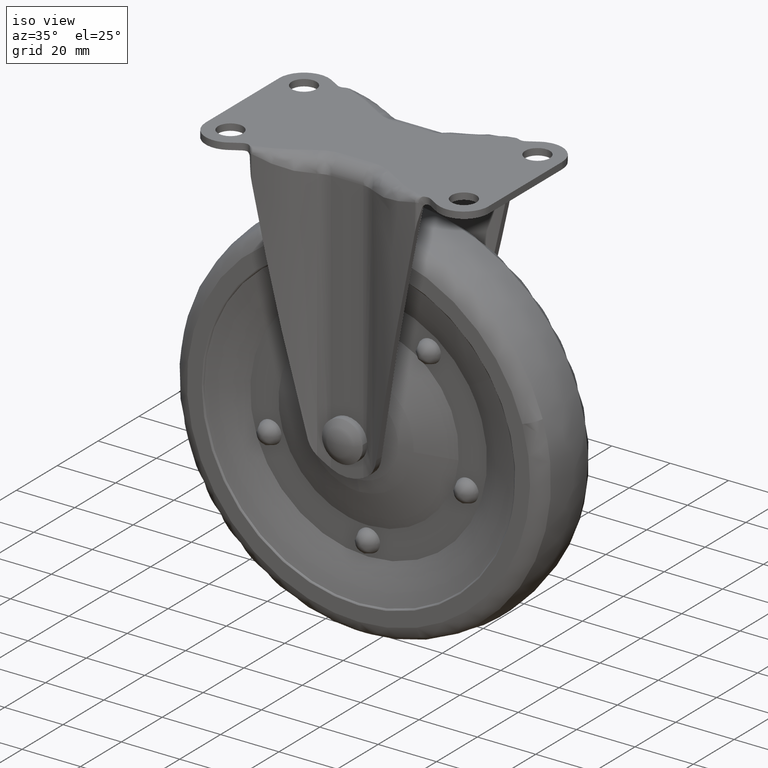
[diagram: clean part render]
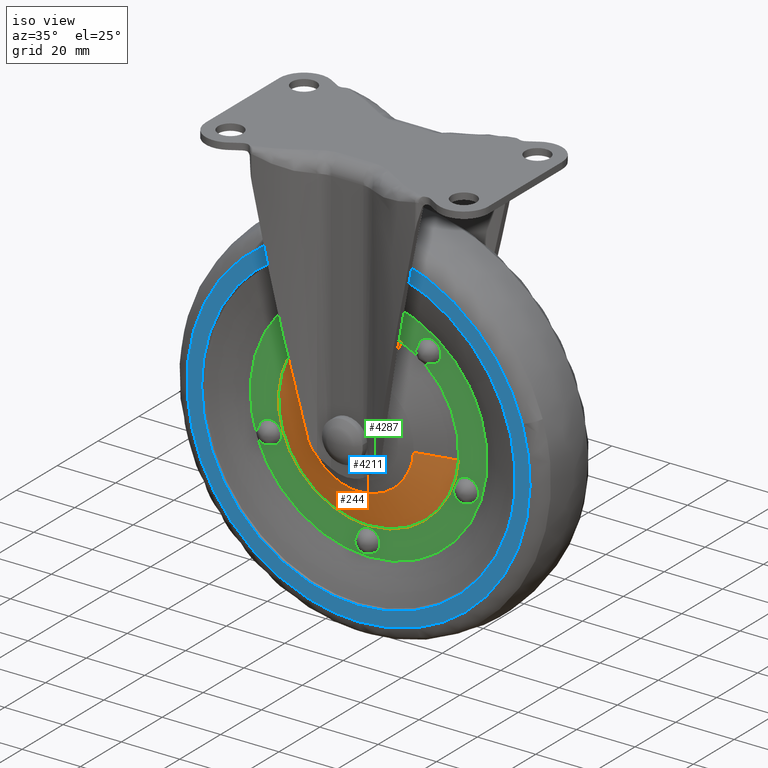
[diagram: same view with three faces highlighted in distinct colors, each labeled with its STEP entity id]
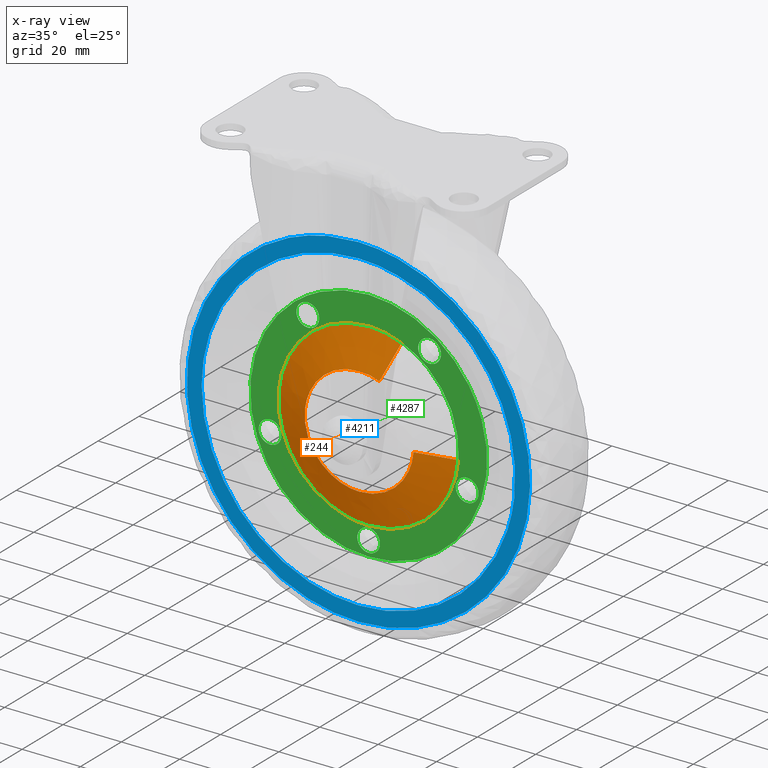
[diagram: x-ray of the same camera — body ghosted, the three highlighted faces saturated]
A machine part, iso view with three faces highlighted in distinct colors.
The next image is the same camera in x-ray (body ghosted, the three faces saturated) — at least one of them is partly hidden behind the body in this view.
Their STEP definitions:

[orange] entity #244 — the highlighted face is a freeform B-spline surface patch.
#58=CARTESIAN_POINT('',(18.615522771160080,-12.110029347952310,-86.465073416238539));
#59=VERTEX_POINT('',#58);
#60=CARTESIAN_POINT('',(6.869872647842241,-12.110029348146890,-67.636562035293082));
#61=VERTEX_POINT('',#60);
#77=CARTESIAN_POINT('',(30.804745612386821,-7.499999999973484,-87.424386058465160));
#78=VERTEX_POINT('',#77);
#79=CARTESIAN_POINT('',(18.615522771160080,-12.110029347952310,-86.465073416238539));
#80=CARTESIAN_POINT('',(30.804745612386821,-7.499999999973484,-87.424386058465160));
#81=QUASI_UNIFORM_CURVE('',1,(#79,#80),.UNSPECIFIED.,.F.,.U.);
#82=EDGE_CURVE('',#59,#78,#81,.T.);
#84=CARTESIAN_POINT('',(11.368183526315040,-7.499999999998893,-56.267189428943787));
#85=VERTEX_POINT('',#84);
#101=CARTESIAN_POINT('',(6.869872647842241,-12.110029348146890,-67.636562035293082));
#102=CARTESIAN_POINT('',(11.368183526315040,-7.499999999998893,-56.267189428943787));
#103=QUASI_UNIFORM_CURVE('',1,(#101,#102),.UNSPECIFIED.,.F.,.U.);
#104=EDGE_CURVE('',#61,#85,#103,.T.);
#109=CARTESIAN_POINT('',(18.310776674156941,-12.225285953808630,-86.441089377540564));
#110=CARTESIAN_POINT('',(16.869687296616380,-12.225285953808632,-104.751866051697490));
#111=CARTESIAN_POINT('',(-1.441089377540563,-12.225285953808630,-103.310776674156900));
#112=CARTESIAN_POINT('',(-19.751866051697498,-12.225285953808632,-101.869687296616380));
#113=CARTESIAN_POINT('',(-18.310776674156941,-12.225285953808630,-83.558910622459436));
#114=CARTESIAN_POINT('',(-16.869687296616380,-12.225285953808632,-65.248133948302495));
#115=CARTESIAN_POINT('',(1.441089377540563,-12.225285953808630,-66.689223325843059));
#116=CARTESIAN_POINT('',(4.191754479687457,-12.225285953808628,-66.905705364284927));
#117=CARTESIAN_POINT('',(6.757409145984396,-12.225285953808635,-67.920810831931249));
#118=CARTESIAN_POINT('',(31.117094835808551,-7.381867851154784,-87.448968475001649));
#119=CARTESIAN_POINT('',(28.668126360806898,-7.381867851154784,-118.566063310810190));
#120=CARTESIAN_POINT('',(-2.448968475001655,-7.381867851154784,-116.117094835808500));
#121=CARTESIAN_POINT('',(-33.566063310810200,-7.381867851154784,-113.668126360806880));
#122=CARTESIAN_POINT('',(-31.117094835808551,-7.381867851154784,-82.551031524998351));
#123=CARTESIAN_POINT('',(-28.668126360806898,-7.381867851154784,-51.433936689189807));
#124=CARTESIAN_POINT('',(2.448968475001655,-7.381867851154784,-53.882905164191463));
#125=CARTESIAN_POINT('',(7.123412840098185,-7.381867851154783,-54.250791914181264));
#126=CARTESIAN_POINT('',(11.483452885792879,-7.381867851154783,-55.975848893860302));
#134=(BOUNDED_SURFACE()B_SPLINE_SURFACE(2,1,((#109,#118),(#110,#119),(#111,#120),(#112,#121),(#113,#122),(#114,#123),(#115,#124),(#116,#125),(#117,#126)),.UNSPECIFIED.,.F.,.F.,.U.)B_SPLINE_SURFACE_WITH_KNOTS((3,2,2,2,3),(2,2),(0.0,51.715913713231032,103.431827426462110,155.147741139693100,165.490923882339300),(0.0,13.728667235010899),.UNSPECIFIED.)GEOMETRIC_REPRESENTATION_ITEM()RATIONAL_B_SPLINE_SURFACE(((1.0,1.0),(0.707106781186548,0.707106781186548),(1.0,1.0),(0.707106781186548,0.707106781186548),(1.0,1.0),(0.707106781186548,0.707106781186548),(1.0,1.0),(0.941421356237310,0.941421356237310),(0.906274169979695,0.906274169979695)))REPRESENTATION_ITEM('')SURFACE());
#135=CARTESIAN_POINT('',(0.0,-12.110029348156120,-66.326914337719060));
#136=VERTEX_POINT('',#135);
#137=CARTESIAN_POINT('',(6.869872647842241,-12.110029348146888,-67.636562035293082));
#138=CARTESIAN_POINT('',(3.559769576403685,-12.110029348156125,-66.326914337719060));
#139=CARTESIAN_POINT('',(0.0,-12.110029348156120,-66.326914337719060));
#147=(BOUNDED_CURVE()B_SPLINE_CURVE(2,(#137,#138,#139),.UNSPECIFIED.,.F.,.U.)B_SPLINE_CURVE_WITH_KNOTS((3,3),(0.437532549935244,0.500000000000000),.UNSPECIFIED.)CURVE()GEOMETRIC_REPRESENTATION_ITEM()RATIONAL_B_SPLINE_CURVE((0.890203187496415,0.926814829917861,1.0))REPRESENTATION_ITEM(''));
#148=EDGE_CURVE('',#61,#136,#147,.T.);
#149=ORIENTED_EDGE('',*,*,#148,.F.);
#150=ORIENTED_EDGE('',*,*,#104,.T.);
#151=CARTESIAN_POINT('',(0.0,-7.500000000000000,-54.100000000000009));
#152=VERTEX_POINT('',#151);
#153=CARTESIAN_POINT('',(11.368183526315049,-7.499999999998893,-56.267189428943787));
#154=CARTESIAN_POINT('',(5.890664344010750,-7.500000000000001,-54.100000000000016));
#155=CARTESIAN_POINT('',(0.0,-7.500000000000000,-54.100000000000009));
#163=(BOUNDED_CURVE()B_SPLINE_CURVE(2,(#153,#154,#155),.UNSPECIFIED.,.F.,.U.)B_SPLINE_CURVE_WITH_KNOTS((3,3),(0.437532549939148,0.500000000000000),.UNSPECIFIED.)CURVE()GEOMETRIC_REPRESENTATION_ITEM()RATIONAL_B_SPLINE_CURVE((0.890203187500991,0.926814829922434,1.0))REPRESENTATION_ITEM(''));
#164=EDGE_CURVE('',#85,#152,#163,.T.);
#165=ORIENTED_EDGE('',*,*,#164,.T.);
#166=CARTESIAN_POINT('',(0.0,-7.500000000000000,-115.900000000000010));
#167=VERTEX_POINT('',#166);
#168=CARTESIAN_POINT('',(0.0,-7.500000000000000,-54.100000000000009));
#169=CARTESIAN_POINT('',(-30.900000000000002,-7.500000000000000,-54.100000000000009));
#170=CARTESIAN_POINT('',(-30.899999999999999,-7.500000000000000,-85.0));
#171=CARTESIAN_POINT('',(-30.900000000000002,-7.500000000000000,-115.900000000000010));
#172=CARTESIAN_POINT('',(0.0,-7.500000000000000,-115.900000000000010));
#180=(BOUNDED_CURVE()B_SPLINE_CURVE(2,(#168,#169,#170,#171,#172),.UNSPECIFIED.,.F.,.U.)B_SPLINE_CURVE_WITH_KNOTS((3,2,3),(0.500000000000000,0.750000000000000,1.0),.UNSPECIFIED.)CURVE()GEOMETRIC_REPRESENTATION_ITEM()RATIONAL_B_SPLINE_CURVE((1.0,0.707106781186548,1.0,0.707106781186548,1.0))REPRESENTATION_ITEM(''));
#181=EDGE_CURVE('',#152,#167,#180,.T.);
#182=ORIENTED_EDGE('',*,*,#181,.T.);
#183=CARTESIAN_POINT('',(0.0,-7.500000000000000,-115.900000000000010));
#184=CARTESIAN_POINT('',(28.563666191365684,-7.500000000000002,-115.900000000000010));
#185=CARTESIAN_POINT('',(30.804745612386814,-7.499999999973484,-87.424386058465160));
#193=(BOUNDED_CURVE()B_SPLINE_CURVE(2,(#183,#184,#185),.UNSPECIFIED.,.F.,.U.)B_SPLINE_CURVE_WITH_KNOTS((3,3),(0.0,0.236331300627544),.UNSPECIFIED.)CURVE()GEOMETRIC_REPRESENTATION_ITEM()RATIONAL_B_SPLINE_CURVE((1.0,0.723120658611315,0.969723356160916))REPRESENTATION_ITEM(''));
#194=EDGE_CURVE('',#167,#78,#193,.T.);
#195=ORIENTED_EDGE('',*,*,#194,.T.);
#196=ORIENTED_EDGE('',*,*,#82,.F.);
#197=CARTESIAN_POINT('',(0.0,-12.110029259155240,-103.673085898332900));
#198=VERTEX_POINT('',#197);
#199=CARTESIAN_POINT('',(0.0,-12.110029259155240,-103.673085898332900));
#200=CARTESIAN_POINT('',(17.261222835481234,-12.110029341426806,-103.673085680128720));
#201=CARTESIAN_POINT('',(18.615522771160084,-12.110029347952302,-86.465073416238539));
#209=(BOUNDED_CURVE()B_SPLINE_CURVE(2,(#199,#200,#201),.UNSPECIFIED.,.F.,.U.)B_SPLINE_CURVE_WITH_KNOTS((3,3),(0.0,0.236331300626327),.UNSPECIFIED.)CURVE()GEOMETRIC_REPRESENTATION_ITEM()RATIONAL_B_SPLINE_CURVE((1.0,0.723120658612742,0.969723356158375))REPRESENTATION_ITEM(''));
#210=EDGE_CURVE('',#198,#59,#209,.T.);
#211=ORIENTED_EDGE('',*,*,#210,.F.);
#212=CARTESIAN_POINT('',(-18.548178955289320,-12.110035076886470,-82.843934565991233));
#213=VERTEX_POINT('',#212);
#214=CARTESIAN_POINT('',(-18.548178955289313,-12.110035076886469,-82.843934565991233));
#215=CARTESIAN_POINT('',(-18.673070959147640,-12.110034926840383,-83.918350906422120));
#216=CARTESIAN_POINT('',(-18.673071396265769,-12.110034758342421,-85.000001671225718));
#217=CARTESIAN_POINT('',(-18.673078942457536,-12.110031849476810,-103.673086574353080));
#218=CARTESIAN_POINT('',(0.0,-12.110029259155240,-103.673085898332900));
#226=(BOUNDED_CURVE()B_SPLINE_CURVE(2,(#214,#215,#216,#217,#218),.UNSPECIFIED.,.F.,.U.)B_SPLINE_CURVE_WITH_KNOTS((3,2,3),(0.730000057060419,0.750000000000000,1.0),.UNSPECIFIED.)CURVE()GEOMETRIC_REPRESENTATION_ITEM()RATIONAL_B_SPLINE_CURVE((0.956886230499429,0.976568609345363,1.0,0.707106781186548,1.0))REPRESENTATION_ITEM(''));
#227=EDGE_CURVE('',#213,#198,#226,.T.);
#228=ORIENTED_EDGE('',*,*,#227,.F.);
#229=CARTESIAN_POINT('',(0.0,-12.110029348156120,-66.326914337719060));
#230=CARTESIAN_POINT('',(-16.628225911801024,-12.110032212521299,-66.326915214898619));
#231=CARTESIAN_POINT('',(-18.548178955289313,-12.110035076886469,-82.843934565991233));
#239=(BOUNDED_CURVE()B_SPLINE_CURVE(2,(#229,#230,#231),.UNSPECIFIED.,.F.,.U.)B_SPLINE_CURVE_WITH_KNOTS((3,3),(0.500000000000000,0.730000057060419),.UNSPECIFIED.)CURVE()GEOMETRIC_REPRESENTATION_ITEM()RATIONAL_B_SPLINE_CURVE((1.0,0.730538171841184,0.956886230499429))REPRESENTATION_ITEM(''));
#240=EDGE_CURVE('',#136,#213,#239,.T.);
#241=ORIENTED_EDGE('',*,*,#240,.F.);
#242=EDGE_LOOP('',(#149,#150,#165,#182,#195,#196,#211,#228,#241));
#243=FACE_OUTER_BOUND('',#242,.T.);
#244=ADVANCED_FACE('',(#243),#134,.T.);

[blue] entity #4211 — the highlighted face is a freeform B-spline surface patch.
#2517=CARTESIAN_POINT('',(56.162077719327492,-12.500000000000000,-67.528964466756861));
#2518=VERTEX_POINT('',#2517);
#2532=CARTESIAN_POINT('',(0.0,-12.500000000000000,-143.816800792717690));
#2533=VERTEX_POINT('',#2532);
#2534=CARTESIAN_POINT('',(0.0,-12.500000000000000,-143.816800792717690));
#2535=CARTESIAN_POINT('',(58.816800792717693,-12.500000000000000,-143.816800792717660));
#2536=CARTESIAN_POINT('',(58.816800792717700,-12.500000000000000,-85.0));
#2537=CARTESIAN_POINT('',(58.816800792717700,-12.500000000000002,-76.062789706671481));
#2538=CARTESIAN_POINT('',(56.162077719327485,-12.499999999999995,-67.528964466756861));
#2546=(BOUNDED_CURVE()B_SPLINE_CURVE(2,(#2534,#2535,#2536,#2537,#2538),.UNSPECIFIED.,.F.,.U.)B_SPLINE_CURVE_WITH_KNOTS((3,2,3),(0.0,0.250000000000000,0.300541362320372),.UNSPECIFIED.)CURVE()GEOMETRIC_REPRESENTATION_ITEM()RATIONAL_B_SPLINE_CURVE((1.0,0.707106781186548,1.0,0.940787110827077,0.905515822339952))REPRESENTATION_ITEM(''));
#2547=EDGE_CURVE('',#2533,#2518,#2546,.T.);
#2549=CARTESIAN_POINT('',(-23.838893956633530,-12.500000000000000,-31.230834199222748));
#2550=VERTEX_POINT('',#2549);
#2551=CARTESIAN_POINT('',(-23.838893956633530,-12.500000000000002,-31.230834199222748));
#2552=CARTESIAN_POINT('',(-58.816800792717693,-12.500000000000000,-46.738506667733411));
#2553=CARTESIAN_POINT('',(-58.816800792717700,-12.500000000000000,-85.0));
#2554=CARTESIAN_POINT('',(-58.816800792717693,-12.500000000000000,-143.816800792717660));
#2555=CARTESIAN_POINT('',(0.0,-12.500000000000000,-143.816800792717690));
#2563=(BOUNDED_CURVE()B_SPLINE_CURVE(2,(#2551,#2552,#2553,#2554,#2555),.UNSPECIFIED.,.F.,.U.)B_SPLINE_CURVE_WITH_KNOTS((3,2,3),(0.568824898122893,0.750000000000000,1.0),.UNSPECIFIED.)CURVE()GEOMETRIC_REPRESENTATION_ITEM()RATIONAL_B_SPLINE_CURVE((0.883129907827514,0.787740164969436,1.0,0.707106781186548,1.0))REPRESENTATION_ITEM(''));
#2564=EDGE_CURVE('',#2550,#2533,#2563,.T.);
#2607=CARTESIAN_POINT('',(0.0,-12.500000000000000,-26.183199207282311));
#2608=VERTEX_POINT('',#2607);
#2609=CARTESIAN_POINT('',(0.0,-12.500000000000000,-26.183199207282311));
#2610=CARTESIAN_POINT('',(-12.453838780664034,-12.500000000000007,-26.183199207282307));
#2611=CARTESIAN_POINT('',(-23.838893956633530,-12.500000000000005,-31.230834199222745));
#2619=(BOUNDED_CURVE()B_SPLINE_CURVE(2,(#2609,#2610,#2611),.UNSPECIFIED.,.F.,.U.)B_SPLINE_CURVE_WITH_KNOTS((3,3),(0.500000000000000,0.568824898122895),.UNSPECIFIED.)CURVE()GEOMETRIC_REPRESENTATION_ITEM()RATIONAL_B_SPLINE_CURVE((1.0,0.919366616217110,0.883129907827513))REPRESENTATION_ITEM(''));
#2620=EDGE_CURVE('',#2608,#2550,#2619,.T.);
#2622=CARTESIAN_POINT('',(56.162077719327485,-12.499999999999996,-67.528964466756861));
#2623=CARTESIAN_POINT('',(43.300136641343514,-12.500000000000000,-26.183199207282303));
#2624=CARTESIAN_POINT('',(0.0,-12.500000000000000,-26.183199207282311));
#2632=(BOUNDED_CURVE()B_SPLINE_CURVE(2,(#2622,#2623,#2624),.UNSPECIFIED.,.F.,.U.)B_SPLINE_CURVE_WITH_KNOTS((3,3),(0.300541362320373,0.500000000000000),.UNSPECIFIED.)CURVE()GEOMETRIC_REPRESENTATION_ITEM()RATIONAL_B_SPLINE_CURVE((0.905515822339951,0.766319670359471,1.0))REPRESENTATION_ITEM(''));
#2633=EDGE_CURVE('',#2518,#2608,#2632,.T.);
#2670=CARTESIAN_POINT('',(53.390500584351472,-12.500000000000000,-91.206202326289116));
#2671=VERTEX_POINT('',#2670);
#2685=CARTESIAN_POINT('',(0.0,-12.500000000000000,-31.250000000000011));
#2686=VERTEX_POINT('',#2685);
#2687=CARTESIAN_POINT('',(53.390500584351472,-12.499999999999998,-91.206202326289116));
#2688=CARTESIAN_POINT('',(53.749999999999993,-12.499999999999998,-88.113513314010092));
#2689=CARTESIAN_POINT('',(53.750000000000000,-12.500000000000000,-85.0));
#2690=CARTESIAN_POINT('',(53.750000000000000,-12.500000000000000,-31.250000000000014));
#2691=CARTESIAN_POINT('',(0.0,-12.500000000000000,-31.250000000000011));
#2699=(BOUNDED_CURVE()B_SPLINE_CURVE(2,(#2687,#2688,#2689,#2690,#2691),.UNSPECIFIED.,.F.,.U.)B_SPLINE_CURVE_WITH_KNOTS((3,2,3),(0.230000000000005,0.250000000000000,0.500000000000000),.UNSPECIFIED.)CURVE()GEOMETRIC_REPRESENTATION_ITEM()RATIONAL_B_SPLINE_CURVE((0.956886118190670,0.976568542494930,1.0,0.707106781186548,1.0))REPRESENTATION_ITEM(''));
#2700=EDGE_CURVE('',#2671,#2686,#2699,.T.);
#2702=CARTESIAN_POINT('',(-53.749999987348417,-12.500000000000000,-85.0));
#2703=VERTEX_POINT('',#2702);
#2704=CARTESIAN_POINT('',(0.0,-12.500000000000000,-31.250000000000011));
#2705=CARTESIAN_POINT('',(-53.749999999999744,-12.500000000000000,-31.250000000000011));
#2706=CARTESIAN_POINT('',(-53.749999987348424,-12.500000000000005,-85.0));
#2714=(BOUNDED_CURVE()B_SPLINE_CURVE(2,(#2704,#2705,#2706),.UNSPECIFIED.,.F.,.U.)B_SPLINE_CURVE_WITH_KNOTS((3,3),(0.500000000000000,0.749999999999999),.UNSPECIFIED.)CURVE()GEOMETRIC_REPRESENTATION_ITEM()RATIONAL_B_SPLINE_CURVE((1.0,0.707106781186549,0.999999999999998))REPRESENTATION_ITEM(''));
#2715=EDGE_CURVE('',#2686,#2703,#2714,.T.);
#2762=CARTESIAN_POINT('',(0.0,-12.500000000000000,-138.750000000000000));
#2763=VERTEX_POINT('',#2762);
#2764=CARTESIAN_POINT('',(-53.749999987348424,-12.500000000000004,-85.0));
#2765=CARTESIAN_POINT('',(-53.749999999999972,-12.500000000000000,-138.750000000000000));
#2766=CARTESIAN_POINT('',(0.0,-12.500000000000000,-138.750000000000000));
#2774=(BOUNDED_CURVE()B_SPLINE_CURVE(2,(#2764,#2765,#2766),.UNSPECIFIED.,.F.,.U.)B_SPLINE_CURVE_WITH_KNOTS((3,3),(0.750000000000000,1.0),.UNSPECIFIED.)CURVE()GEOMETRIC_REPRESENTATION_ITEM()RATIONAL_B_SPLINE_CURVE((1.000000000000000,0.707106781186548,1.0))REPRESENTATION_ITEM(''));
#2775=EDGE_CURVE('',#2703,#2763,#2774,.T.);
#2777=CARTESIAN_POINT('',(0.0,-12.500000000000000,-138.750000000000000));
#2778=CARTESIAN_POINT('',(47.863928919449691,-12.499999999999998,-138.750000000000060));
#2779=CARTESIAN_POINT('',(53.390500584351472,-12.500000000000004,-91.206202326289116));
#2787=(BOUNDED_CURVE()B_SPLINE_CURVE(2,(#2777,#2778,#2779),.UNSPECIFIED.,.F.,.U.)B_SPLINE_CURVE_WITH_KNOTS((3,3),(0.0,0.230000000000005),.UNSPECIFIED.)CURVE()GEOMETRIC_REPRESENTATION_ITEM()RATIONAL_B_SPLINE_CURVE((1.0,0.730538238691618,0.956886118190670))REPRESENTATION_ITEM(''));
#2788=EDGE_CURVE('',#2763,#2671,#2787,.T.);
#4194=CARTESIAN_POINT('',(-64.669866689943390,-12.500000000000000,-20.307399931826460));
#4195=CARTESIAN_POINT('',(-64.669866689943390,-12.500000000000000,-149.692602171626310));
#4196=CARTESIAN_POINT('',(64.688136830366730,-12.500000000000000,-20.307399931826460));
#4197=CARTESIAN_POINT('',(64.688136830366730,-12.500000000000000,-149.692602171626310));
#4198=B_SPLINE_SURFACE_WITH_KNOTS('',1,1,((#4194,#4196),(#4195,#4197)),.UNSPECIFIED.,.F.,.F.,.U.,(2,2),(2,2),(0.0,129.385202239799810),(0.0,129.358003520310090),.UNSPECIFIED.);
#4199=ORIENTED_EDGE('',*,*,#2633,.T.);
#4200=ORIENTED_EDGE('',*,*,#2620,.T.);
#4201=ORIENTED_EDGE('',*,*,#2564,.T.);
#4202=ORIENTED_EDGE('',*,*,#2547,.T.);
#4203=EDGE_LOOP('',(#4199,#4200,#4201,#4202));
#4204=FACE_OUTER_BOUND('',#4203,.T.);
#4205=ORIENTED_EDGE('',*,*,#2715,.F.);
#4206=ORIENTED_EDGE('',*,*,#2700,.F.);
#4207=ORIENTED_EDGE('',*,*,#2788,.F.);
#4208=ORIENTED_EDGE('',*,*,#2775,.F.);
#4209=EDGE_LOOP('',(#4205,#4206,#4207,#4208));
#4210=FACE_BOUND('',#4209,.T.);
#4211=ADVANCED_FACE('',(#4204,#4210),#4198,.T.);

[green] entity #4287 — the highlighted face is a freeform B-spline surface patch.
#77=CARTESIAN_POINT('',(30.804745612386821,-7.499999999973484,-87.424386058465160));
#78=VERTEX_POINT('',#77);
#84=CARTESIAN_POINT('',(11.368183526315040,-7.499999999998893,-56.267189428943787));
#85=VERTEX_POINT('',#84);
#86=CARTESIAN_POINT('',(30.804745612386817,-7.499999999973484,-87.424386058465160));
#87=CARTESIAN_POINT('',(30.900000000000006,-7.499999999999999,-86.214064307008400));
#88=CARTESIAN_POINT('',(30.899999999999999,-7.500000000000000,-85.0));
#89=CARTESIAN_POINT('',(30.899999999999988,-7.499999999999999,-63.994984582389748));
#90=CARTESIAN_POINT('',(11.368183526315043,-7.499999999998893,-56.267189428943801));
#98=(BOUNDED_CURVE()B_SPLINE_CURVE(2,(#86,#87,#88,#89,#90),.UNSPECIFIED.,.F.,.U.)B_SPLINE_CURVE_WITH_KNOTS((3,2,3),(0.236331300627544,0.250000000000000,0.437532549939149),.UNSPECIFIED.)CURVE()GEOMETRIC_REPRESENTATION_ITEM()RATIONAL_B_SPLINE_CURVE((0.969723356160916,0.983986122575232,1.0,0.780291951264113,0.890203187500991))REPRESENTATION_ITEM(''));
#99=EDGE_CURVE('',#78,#85,#98,.T.);
#151=CARTESIAN_POINT('',(0.0,-7.500000000000000,-54.100000000000009));
#152=VERTEX_POINT('',#151);
#153=CARTESIAN_POINT('',(11.368183526315049,-7.499999999998893,-56.267189428943787));
#154=CARTESIAN_POINT('',(5.890664344010750,-7.500000000000001,-54.100000000000016));
#155=CARTESIAN_POINT('',(0.0,-7.500000000000000,-54.100000000000009));
#163=(BOUNDED_CURVE()B_SPLINE_CURVE(2,(#153,#154,#155),.UNSPECIFIED.,.F.,.U.)B_SPLINE_CURVE_WITH_KNOTS((3,3),(0.437532549939148,0.500000000000000),.UNSPECIFIED.)CURVE()GEOMETRIC_REPRESENTATION_ITEM()RATIONAL_B_SPLINE_CURVE((0.890203187500991,0.926814829922434,1.0))REPRESENTATION_ITEM(''));
#164=EDGE_CURVE('',#85,#152,#163,.T.);
#166=CARTESIAN_POINT('',(0.0,-7.500000000000000,-115.900000000000010));
#167=VERTEX_POINT('',#166);
#168=CARTESIAN_POINT('',(0.0,-7.500000000000000,-54.100000000000009));
#169=CARTESIAN_POINT('',(-30.900000000000002,-7.500000000000000,-54.100000000000009));
#170=CARTESIAN_POINT('',(-30.899999999999999,-7.500000000000000,-85.0));
#171=CARTESIAN_POINT('',(-30.900000000000002,-7.500000000000000,-115.900000000000010));
#172=CARTESIAN_POINT('',(0.0,-7.500000000000000,-115.900000000000010));
#180=(BOUNDED_CURVE()B_SPLINE_CURVE(2,(#168,#169,#170,#171,#172),.UNSPECIFIED.,.F.,.U.)B_SPLINE_CURVE_WITH_KNOTS((3,2,3),(0.500000000000000,0.750000000000000,1.0),.UNSPECIFIED.)CURVE()GEOMETRIC_REPRESENTATION_ITEM()RATIONAL_B_SPLINE_CURVE((1.0,0.707106781186548,1.0,0.707106781186548,1.0))REPRESENTATION_ITEM(''));
#181=EDGE_CURVE('',#152,#167,#180,.T.);
#183=CARTESIAN_POINT('',(0.0,-7.500000000000000,-115.900000000000010));
#184=CARTESIAN_POINT('',(28.563666191365684,-7.500000000000002,-115.900000000000010));
#185=CARTESIAN_POINT('',(30.804745612386814,-7.499999999973484,-87.424386058465160));
#193=(BOUNDED_CURVE()B_SPLINE_CURVE(2,(#183,#184,#185),.UNSPECIFIED.,.F.,.U.)B_SPLINE_CURVE_WITH_KNOTS((3,3),(0.0,0.236331300627544),.UNSPECIFIED.)CURVE()GEOMETRIC_REPRESENTATION_ITEM()RATIONAL_B_SPLINE_CURVE((1.0,0.723120658611315,0.969723356160916))REPRESENTATION_ITEM(''));
#194=EDGE_CURVE('',#167,#78,#193,.T.);
#1059=CARTESIAN_POINT('',(-25.484269268512222,-7.500000000049654,-53.394430556344929));
#1060=VERTEX_POINT('',#1059);
#1074=CARTESIAN_POINT('',(0.0,-7.500000000000000,-44.400000000000013));
#1075=VERTEX_POINT('',#1074);
#1076=CARTESIAN_POINT('',(0.0,-7.500000000000000,-44.400000000000013));
#1077=CARTESIAN_POINT('',(-14.329384011163127,-7.499999999999999,-44.399999999999991));
#1078=CARTESIAN_POINT('',(-25.484269268512215,-7.500000000049654,-53.394430556344936));
#1086=(BOUNDED_CURVE()B_SPLINE_CURVE(2,(#1076,#1077,#1078),.UNSPECIFIED.,.F.,.U.)B_SPLINE_CURVE_WITH_KNOTS((3,3),(0.500000000000000,0.608867648264037),.UNSPECIFIED.)CURVE()GEOMETRIC_REPRESENTATION_ITEM()RATIONAL_B_SPLINE_CURVE((1.0,0.872453616301182,0.855992631305346))REPRESENTATION_ITEM(''));
#1087=EDGE_CURVE('',#1075,#1060,#1086,.T.);
#1089=CARTESIAN_POINT('',(34.336701489825757,-7.500000000034882,-63.335491447899479));
#1090=VERTEX_POINT('',#1089);
#1091=CARTESIAN_POINT('',(34.336701489825764,-7.500000000034882,-63.335491447899486));
#1092=CARTESIAN_POINT('',(22.389481791463030,-7.500000000000001,-44.400000000000006));
#1093=CARTESIAN_POINT('',(0.0,-7.500000000000000,-44.400000000000013));
#1101=(BOUNDED_CURVE()B_SPLINE_CURVE(2,(#1091,#1092,#1093),.UNSPECIFIED.,.F.,.U.)B_SPLINE_CURVE_WITH_KNOTS((3,3),(0.341282573813230,0.500000000000000),.UNSPECIFIED.)CURVE()GEOMETRIC_REPRESENTATION_ITEM()RATIONAL_B_SPLINE_CURVE((0.864208750561982,0.814050968649481,1.0))REPRESENTATION_ITEM(''));
#1102=EDGE_CURVE('',#1090,#1075,#1101,.T.);
#1167=CARTESIAN_POINT('',(0.0,-7.500000000000000,-125.599999999999990));
#1168=VERTEX_POINT('',#1167);
#1169=CARTESIAN_POINT('',(0.0,-7.500000000000000,-125.599999999999990));
#1170=CARTESIAN_POINT('',(40.599999999999994,-7.500000000000000,-125.599999999999980));
#1171=CARTESIAN_POINT('',(40.599999999999987,-7.500000000000000,-85.0));
#1172=CARTESIAN_POINT('',(40.599999999999994,-7.500000000000000,-73.262373046434490));
#1173=CARTESIAN_POINT('',(34.336701489825764,-7.500000000034882,-63.335491447899486));
#1181=(BOUNDED_CURVE()B_SPLINE_CURVE(2,(#1169,#1170,#1171,#1172,#1173),.UNSPECIFIED.,.F.,.U.)B_SPLINE_CURVE_WITH_KNOTS((3,2,3),(0.0,0.250000000000000,0.341282573813230),.UNSPECIFIED.)CURVE()GEOMETRIC_REPRESENTATION_ITEM()RATIONAL_B_SPLINE_CURVE((1.0,0.707106781186548,1.0,0.893055812537066,0.864208750561982))REPRESENTATION_ITEM(''));
#1182=EDGE_CURVE('',#1168,#1090,#1181,.T.);
#1184=CARTESIAN_POINT('',(-25.484269268512222,-7.500000000049654,-53.394430556344929));
#1185=CARTESIAN_POINT('',(-40.600000000000009,-7.500000000000000,-65.582578371349996));
#1186=CARTESIAN_POINT('',(-40.599999999999987,-7.500000000000000,-85.0));
#1187=CARTESIAN_POINT('',(-40.599999999999994,-7.500000000000000,-125.599999999999980));
#1188=CARTESIAN_POINT('',(0.0,-7.500000000000000,-125.599999999999990));
#1196=(BOUNDED_CURVE()B_SPLINE_CURVE(2,(#1184,#1185,#1186,#1187,#1188),.UNSPECIFIED.,.F.,.U.)B_SPLINE_CURVE_WITH_KNOTS((3,2,3),(0.608867648264037,0.750000000000000,1.0),.UNSPECIFIED.)CURVE()GEOMETRIC_REPRESENTATION_ITEM()RATIONAL_B_SPLINE_CURVE((0.855992631305346,0.834653164885365,1.0,0.707106781186548,1.0))REPRESENTATION_ITEM(''));
#1197=EDGE_CURVE('',#1060,#1168,#1196,.T.);
#3338=CARTESIAN_POINT('',(-33.762506328477947,-7.500000000000000,-92.070103300310691));
#3339=VERTEX_POINT('',#3338);
#3340=CARTESIAN_POINT('',(-33.762506328477947,-7.500000000000000,-99.870103300310689));
#3341=VERTEX_POINT('',#3340);
#3342=CARTESIAN_POINT('',(-33.762506328477947,-7.500000000000000,-92.070103300310691));
#3343=CARTESIAN_POINT('',(-29.862506328477949,-7.500000000000000,-92.070103300310691));
#3344=CARTESIAN_POINT('',(-29.862506328477949,-7.500000000000000,-95.970103300310697));
#3345=CARTESIAN_POINT('',(-29.862506328477949,-7.500000000000000,-99.870103300310660));
#3346=CARTESIAN_POINT('',(-33.762506328477947,-7.500000000000000,-99.870103300310689));
#3354=(BOUNDED_CURVE()B_SPLINE_CURVE(2,(#3342,#3343,#3344,#3345,#3346),.UNSPECIFIED.,.F.,.U.)B_SPLINE_CURVE_WITH_KNOTS((3,2,3),(0.500000000000000,0.750000000000000,1.0),.UNSPECIFIED.)CURVE()GEOMETRIC_REPRESENTATION_ITEM()RATIONAL_B_SPLINE_CURVE((1.0,0.707106781186548,1.0,0.707106781186548,1.0))REPRESENTATION_ITEM(''));
#3355=EDGE_CURVE('',#3339,#3341,#3354,.T.);
#3357=CARTESIAN_POINT('',(-33.762506328477947,-7.500000000000000,-99.870103300310689));
#3358=CARTESIAN_POINT('',(-37.662506328477946,-7.500000000000000,-99.870103300310660));
#3359=CARTESIAN_POINT('',(-37.662506328477953,-7.500000000000000,-95.970103300310697));
#3360=CARTESIAN_POINT('',(-37.662506328477946,-7.500000000000000,-92.070103300310691));
#3361=CARTESIAN_POINT('',(-33.762506328477947,-7.500000000000000,-92.070103300310691));
#3369=(BOUNDED_CURVE()B_SPLINE_CURVE(2,(#3357,#3358,#3359,#3360,#3361),.UNSPECIFIED.,.F.,.U.)B_SPLINE_CURVE_WITH_KNOTS((3,2,3),(0.0,0.250000000000000,0.500000000000000),.UNSPECIFIED.)CURVE()GEOMETRIC_REPRESENTATION_ITEM()RATIONAL_B_SPLINE_CURVE((1.0,0.707106781186548,1.0,0.707106781186548,1.0))REPRESENTATION_ITEM(''));
#3370=EDGE_CURVE('',#3341,#3339,#3369,.T.);
#3500=CARTESIAN_POINT('',(-20.866376456382799,-7.500000000000000,-52.379896699689503));
#3501=VERTEX_POINT('',#3500);
#3502=CARTESIAN_POINT('',(-20.866376456382799,-7.500000000000000,-60.179896699689500));
#3503=VERTEX_POINT('',#3502);
#3504=CARTESIAN_POINT('',(-20.866376456382799,-7.500000000000000,-52.379896699689503));
#3505=CARTESIAN_POINT('',(-16.966376456382807,-7.500000000000000,-52.379896699689496));
#3506=CARTESIAN_POINT('',(-16.966376456382800,-7.500000000000000,-56.279896699689502));
#3507=CARTESIAN_POINT('',(-16.966376456382807,-7.500000000000000,-60.179896699689500));
#3508=CARTESIAN_POINT('',(-20.866376456382799,-7.500000000000000,-60.179896699689500));
#3516=(BOUNDED_CURVE()B_SPLINE_CURVE(2,(#3504,#3505,#3506,#3507,#3508),.UNSPECIFIED.,.F.,.U.)B_SPLINE_CURVE_WITH_KNOTS((3,2,3),(0.500000000000000,0.750000000000000,1.0),.UNSPECIFIED.)CURVE()GEOMETRIC_REPRESENTATION_ITEM()RATIONAL_B_SPLINE_CURVE((1.0,0.707106781186548,1.0,0.707106781186548,1.0))REPRESENTATION_ITEM(''));
#3517=EDGE_CURVE('',#3501,#3503,#3516,.T.);
#3519=CARTESIAN_POINT('',(-20.866376456382799,-7.500000000000000,-60.179896699689500));
#3520=CARTESIAN_POINT('',(-24.766376456382805,-7.500000000000000,-60.179896699689500));
#3521=CARTESIAN_POINT('',(-24.766376456382801,-7.500000000000000,-56.279896699689502));
#3522=CARTESIAN_POINT('',(-24.766376456382805,-7.500000000000000,-52.379896699689496));
#3523=CARTESIAN_POINT('',(-20.866376456382799,-7.500000000000000,-52.379896699689503));
#3531=(BOUNDED_CURVE()B_SPLINE_CURVE(2,(#3519,#3520,#3521,#3522,#3523),.UNSPECIFIED.,.F.,.U.)B_SPLINE_CURVE_WITH_KNOTS((3,2,3),(0.0,0.250000000000000,0.500000000000000),.UNSPECIFIED.)CURVE()GEOMETRIC_REPRESENTATION_ITEM()RATIONAL_B_SPLINE_CURVE((1.0,0.707106781186548,1.0,0.707106781186548,1.0))REPRESENTATION_ITEM(''));
#3532=EDGE_CURVE('',#3503,#3501,#3531,.T.);
#3662=CARTESIAN_POINT('',(20.866376456382799,-7.500000000000000,-52.379896699689503));
#3663=VERTEX_POINT('',#3662);
#3664=CARTESIAN_POINT('',(20.866376456382799,-7.500000000000000,-60.179896699689500));
#3665=VERTEX_POINT('',#3664);
#3666=CARTESIAN_POINT('',(20.866376456382799,-7.500000000000000,-52.379896699689503));
#3667=CARTESIAN_POINT('',(24.766376456382805,-7.500000000000000,-52.379896699689496));
#3668=CARTESIAN_POINT('',(24.766376456382801,-7.500000000000000,-56.279896699689502));
#3669=CARTESIAN_POINT('',(24.766376456382805,-7.500000000000000,-60.179896699689500));
#3670=CARTESIAN_POINT('',(20.866376456382799,-7.500000000000000,-60.179896699689500));
#3678=(BOUNDED_CURVE()B_SPLINE_CURVE(2,(#3666,#3667,#3668,#3669,#3670),.UNSPECIFIED.,.F.,.U.)B_SPLINE_CURVE_WITH_KNOTS((3,2,3),(0.500000000000000,0.750000000000000,1.0),.UNSPECIFIED.)CURVE()GEOMETRIC_REPRESENTATION_ITEM()RATIONAL_B_SPLINE_CURVE((1.0,0.707106781186548,1.0,0.707106781186548,1.0))REPRESENTATION_ITEM(''));
#3679=EDGE_CURVE('',#3663,#3665,#3678,.T.);
#3681=CARTESIAN_POINT('',(20.866376456382799,-7.500000000000000,-60.179896699689500));
#3682=CARTESIAN_POINT('',(16.966376456382807,-7.500000000000000,-60.179896699689500));
#3683=CARTESIAN_POINT('',(16.966376456382800,-7.500000000000000,-56.279896699689502));
#3684=CARTESIAN_POINT('',(16.966376456382807,-7.500000000000000,-52.379896699689496));
#3685=CARTESIAN_POINT('',(20.866376456382799,-7.500000000000000,-52.379896699689503));
#3693=(BOUNDED_CURVE()B_SPLINE_CURVE(2,(#3681,#3682,#3683,#3684,#3685),.UNSPECIFIED.,.F.,.U.)B_SPLINE_CURVE_WITH_KNOTS((3,2,3),(0.0,0.250000000000000,0.500000000000000),.UNSPECIFIED.)CURVE()GEOMETRIC_REPRESENTATION_ITEM()RATIONAL_B_SPLINE_CURVE((1.0,0.707106781186548,1.0,0.707106781186548,1.0))REPRESENTATION_ITEM(''));
#3694=EDGE_CURVE('',#3665,#3663,#3693,.T.);
#3824=CARTESIAN_POINT('',(33.762506328477947,-7.500000000000000,-92.070103300310691));
#3825=VERTEX_POINT('',#3824);
#3826=CARTESIAN_POINT('',(33.762506328477947,-7.500000000000000,-99.870103300310689));
#3827=VERTEX_POINT('',#3826);
#3828=CARTESIAN_POINT('',(33.762506328477947,-7.500000000000000,-92.070103300310691));
#3829=CARTESIAN_POINT('',(37.662506328477946,-7.500000000000000,-92.070103300310691));
#3830=CARTESIAN_POINT('',(37.662506328477953,-7.500000000000000,-95.970103300310697));
#3831=CARTESIAN_POINT('',(37.662506328477946,-7.500000000000000,-99.870103300310660));
#3832=CARTESIAN_POINT('',(33.762506328477947,-7.500000000000000,-99.870103300310689));
#3840=(BOUNDED_CURVE()B_SPLINE_CURVE(2,(#3828,#3829,#3830,#3831,#3832),.UNSPECIFIED.,.F.,.U.)B_SPLINE_CURVE_WITH_KNOTS((3,2,3),(0.500000000000000,0.750000000000000,1.0),.UNSPECIFIED.)CURVE()GEOMETRIC_REPRESENTATION_ITEM()RATIONAL_B_SPLINE_CURVE((1.0,0.707106781186548,1.0,0.707106781186548,1.0))REPRESENTATION_ITEM(''));
#3841=EDGE_CURVE('',#3825,#3827,#3840,.T.);
#3843=CARTESIAN_POINT('',(33.762506328477947,-7.500000000000000,-99.870103300310689));
#3844=CARTESIAN_POINT('',(29.862506328477949,-7.500000000000000,-99.870103300310660));
#3845=CARTESIAN_POINT('',(29.862506328477949,-7.500000000000000,-95.970103300310697));
#3846=CARTESIAN_POINT('',(29.862506328477949,-7.500000000000000,-92.070103300310691));
#3847=CARTESIAN_POINT('',(33.762506328477947,-7.500000000000000,-92.070103300310691));
#3855=(BOUNDED_CURVE()B_SPLINE_CURVE(2,(#3843,#3844,#3845,#3846,#3847),.UNSPECIFIED.,.F.,.U.)B_SPLINE_CURVE_WITH_KNOTS((3,2,3),(0.0,0.250000000000000,0.500000000000000),.UNSPECIFIED.)CURVE()GEOMETRIC_REPRESENTATION_ITEM()RATIONAL_B_SPLINE_CURVE((1.0,0.707106781186548,1.0,0.707106781186548,1.0))REPRESENTATION_ITEM(''));
#3856=EDGE_CURVE('',#3827,#3825,#3855,.T.);
#3986=CARTESIAN_POINT('',(0.0,-7.500000000000000,-116.599999999999990));
#3987=VERTEX_POINT('',#3986);
#3988=CARTESIAN_POINT('',(0.0,-7.500000000000000,-124.400000000000010));
#3989=VERTEX_POINT('',#3988);
#3990=CARTESIAN_POINT('',(0.0,-7.500000000000000,-116.599999999999990));
#3991=CARTESIAN_POINT('',(3.899999999999999,-7.500000000000000,-116.599999999999990));
#3992=CARTESIAN_POINT('',(3.900000000000000,-7.500000000000000,-120.500000000000000));
#3993=CARTESIAN_POINT('',(3.899999999999999,-7.500000000000000,-124.399999999999990));
#3994=CARTESIAN_POINT('',(0.0,-7.500000000000000,-124.400000000000010));
#4002=(BOUNDED_CURVE()B_SPLINE_CURVE(2,(#3990,#3991,#3992,#3993,#3994),.UNSPECIFIED.,.F.,.U.)B_SPLINE_CURVE_WITH_KNOTS((3,2,3),(0.500000000000000,0.750000000000000,1.0),.UNSPECIFIED.)CURVE()GEOMETRIC_REPRESENTATION_ITEM()RATIONAL_B_SPLINE_CURVE((1.0,0.707106781186548,1.0,0.707106781186548,1.0))REPRESENTATION_ITEM(''));
#4003=EDGE_CURVE('',#3987,#3989,#4002,.T.);
#4005=CARTESIAN_POINT('',(0.0,-7.500000000000000,-124.400000000000010));
#4006=CARTESIAN_POINT('',(-3.899999999999999,-7.500000000000000,-124.399999999999990));
#4007=CARTESIAN_POINT('',(-3.900000000000000,-7.500000000000000,-120.500000000000000));
#4008=CARTESIAN_POINT('',(-3.899999999999999,-7.500000000000000,-116.599999999999990));
#4009=CARTESIAN_POINT('',(0.0,-7.500000000000000,-116.599999999999990));
#4017=(BOUNDED_CURVE()B_SPLINE_CURVE(2,(#4005,#4006,#4007,#4008,#4009),.UNSPECIFIED.,.F.,.U.)B_SPLINE_CURVE_WITH_KNOTS((3,2,3),(0.0,0.250000000000000,0.500000000000000),.UNSPECIFIED.)CURVE()GEOMETRIC_REPRESENTATION_ITEM()RATIONAL_B_SPLINE_CURVE((1.0,0.707106781186548,1.0,0.707106781186548,1.0))REPRESENTATION_ITEM(''));
#4018=EDGE_CURVE('',#3989,#3987,#4017,.T.);
#4250=CARTESIAN_POINT('',(-44.653377456712192,-7.500000000000000,-40.344061971979812));
#4251=CARTESIAN_POINT('',(-44.653377456712192,-7.500000000000000,-129.655935850066500));
#4252=CARTESIAN_POINT('',(44.655022703236817,-7.500000000000000,-40.344061971979812));
#4253=CARTESIAN_POINT('',(44.655022703236817,-7.500000000000000,-129.655935850066500));
#4254=B_SPLINE_SURFACE_WITH_KNOTS('',1,1,((#4250,#4252),(#4251,#4253)),.UNSPECIFIED.,.F.,.F.,.U.,(2,2),(2,2),(0.0,89.311873878086658),(0.0,89.308400159949002),.UNSPECIFIED.);
#4255=ORIENTED_EDGE('',*,*,#1102,.T.);
#4256=ORIENTED_EDGE('',*,*,#1087,.T.);
#4257=ORIENTED_EDGE('',*,*,#1197,.T.);
#4258=ORIENTED_EDGE('',*,*,#1182,.T.);
#4259=EDGE_LOOP('',(#4255,#4256,#4257,#4258));
#4260=FACE_OUTER_BOUND('',#4259,.T.);
#4261=ORIENTED_EDGE('',*,*,#3856,.T.);
#4262=ORIENTED_EDGE('',*,*,#3841,.T.);
#4263=EDGE_LOOP('',(#4261,#4262));
#4264=FACE_BOUND('',#4263,.T.);
#4265=ORIENTED_EDGE('',*,*,#181,.F.);
#4266=ORIENTED_EDGE('',*,*,#164,.F.);
#4267=ORIENTED_EDGE('',*,*,#99,.F.);
#4268=ORIENTED_EDGE('',*,*,#194,.F.);
#4269=EDGE_LOOP('',(#4265,#4266,#4267,#4268));
#4270=FACE_BOUND('',#4269,.T.);
#4271=ORIENTED_EDGE('',*,*,#3532,.T.);
#4272=ORIENTED_EDGE('',*,*,#3517,.T.);
#4273=EDGE_LOOP('',(#4271,#4272));
#4274=FACE_BOUND('',#4273,.T.);
#4275=ORIENTED_EDGE('',*,*,#4018,.T.);
#4276=ORIENTED_EDGE('',*,*,#4003,.T.);
#4277=EDGE_LOOP('',(#4275,#4276));
#4278=FACE_BOUND('',#4277,.T.);
#4279=ORIENTED_EDGE('',*,*,#3694,.T.);
#4280=ORIENTED_EDGE('',*,*,#3679,.T.);
#4281=EDGE_LOOP('',(#4279,#4280));
#4282=FACE_BOUND('',#4281,.T.);
#4283=ORIENTED_EDGE('',*,*,#3370,.T.);
#4284=ORIENTED_EDGE('',*,*,#3355,.T.);
#4285=EDGE_LOOP('',(#4283,#4284));
#4286=FACE_BOUND('',#4285,.T.);
#4287=ADVANCED_FACE('',(#4260,#4264,#4270,#4274,#4278,#4282,#4286),#4254,.T.);